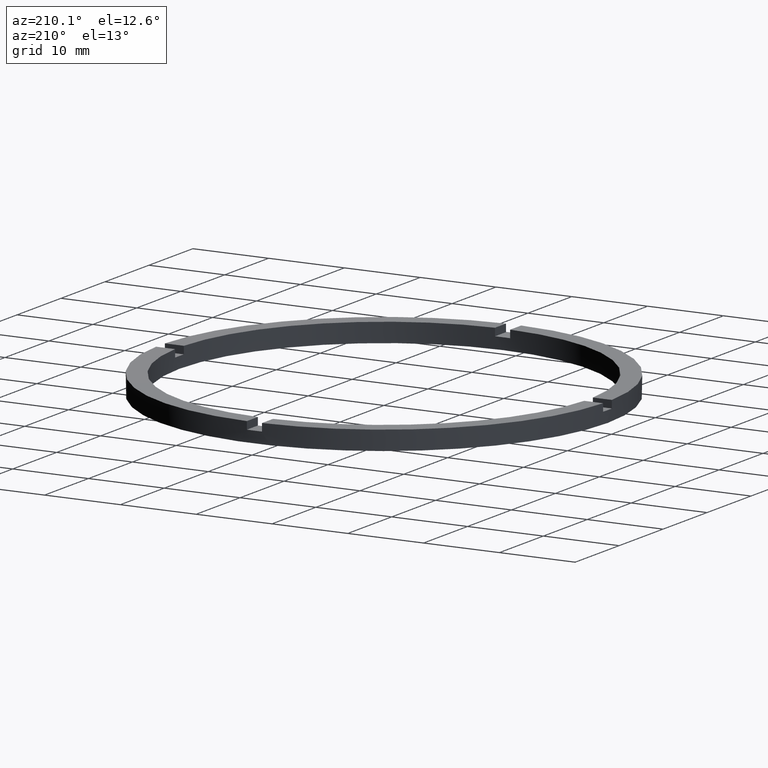
[diagram: clean part render]
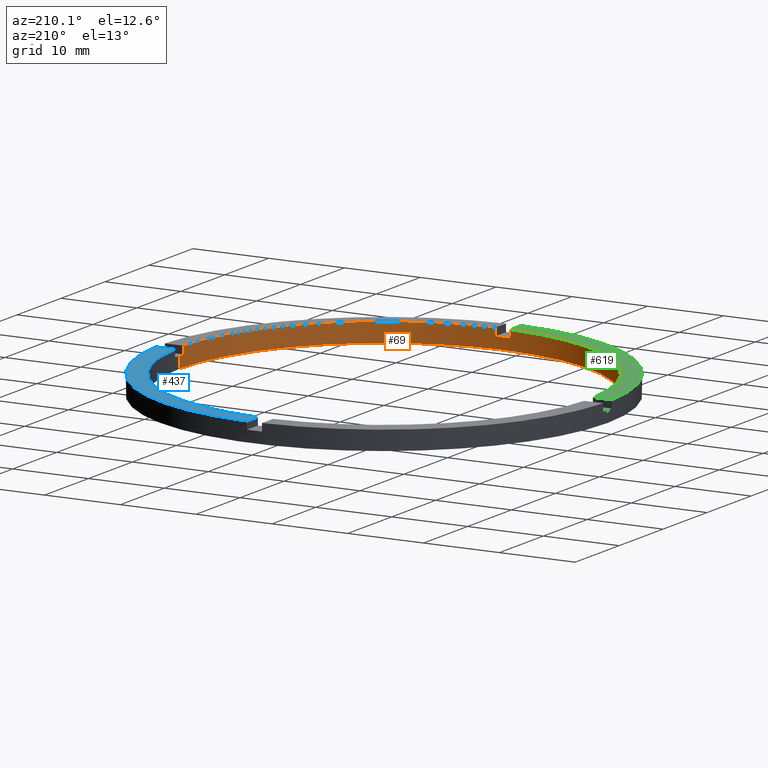
[diagram: same view with three faces highlighted in distinct colors, each labeled with its STEP entity id]
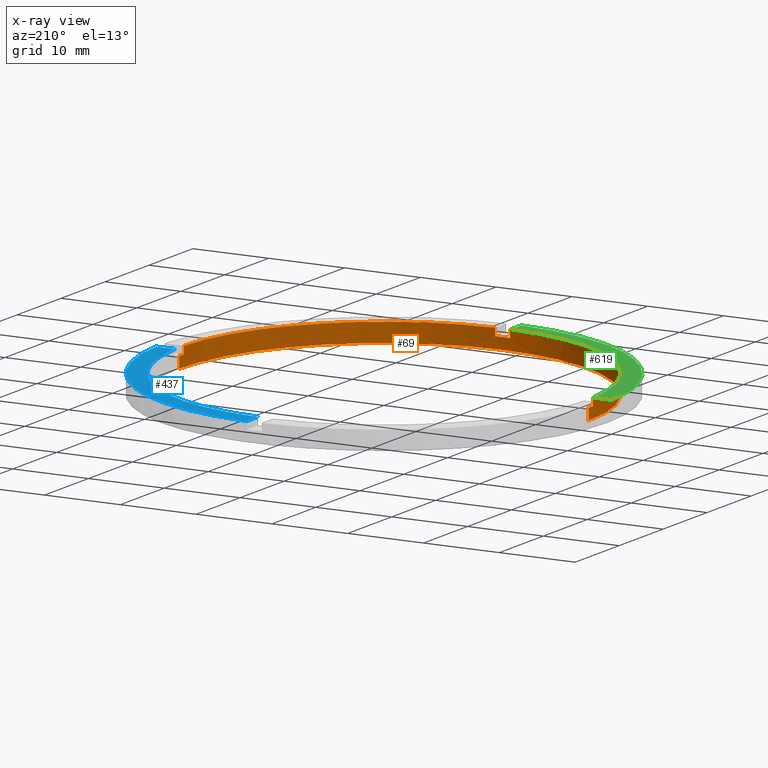
[diagram: x-ray of the same camera — body ghosted, the three highlighted faces saturated]
A machine part, auxiliary view with three faces highlighted in distinct colors.
The next image is the same camera in x-ray (body ghosted, the three faces saturated) — at least one of them is partly hidden behind the body in this view.
Their STEP definitions:

[orange] entity #69 — the highlighted cylindrical surface (partial cylindrical patch) has radius 27 mm, axis along (-0, -0, -1).
#1 = LINE ( 'NONE', #587, #252 ) ;
#3 = CIRCLE ( 'NONE', #139, 27.00000000000000000 ) ;
#13 = EDGE_CURVE ( 'NONE', #750, #728, #457, .T. ) ;
#14 = EDGE_CURVE ( 'NONE', #164, #415, #193, .T. ) ;
#18 = EDGE_CURVE ( 'NONE', #236, #504, #195, .T. ) ;
#39 = LINE ( 'NONE', #596, #40 ) ;
#40 = VECTOR ( 'NONE', #353, 1000.000000000000000 ) ;
#42 = FACE_OUTER_BOUND ( 'NONE', #422, .T. ) ;
#46 = DIRECTION ( 'NONE',  ( -0.000000000000000000, -0.000000000000000000, -1.000000000000000000 ) ) ;
#49 = LINE ( 'NONE', #76, #323 ) ;
#54 = DIRECTION ( 'NONE',  ( -0.000000000000000000, -0.000000000000000000, -1.000000000000000000 ) ) ;
#61 = CARTESIAN_POINT ( 'NONE',  ( 0.000000000000000000, 0.000000000000000000, 1.500000000000000000 ) ) ;
#69 = ADVANCED_FACE ( 'NONE', ( #42 ), #557, .F. ) ;
#70 = CARTESIAN_POINT ( 'NONE',  ( 27.00000000000000000, 3.306546357697853733E-15, 0.000000000000000000 ) ) ;
#73 = CARTESIAN_POINT ( 'NONE',  ( 0.000000000000000000, 0.000000000000000000, 1.500000000000000000 ) ) ;
#76 = CARTESIAN_POINT ( 'NONE',  ( -27.00000000000000000, 0.000000000000000000, 2.500000000000000000 ) ) ;
#104 = AXIS2_PLACEMENT_3D ( 'NONE', #502, #574, #364 ) ;
#116 = DIRECTION ( 'NONE',  ( -0.000000000000000000, 0.000000000000000000, 1.000000000000000000 ) ) ;
#139 = AXIS2_PLACEMENT_3D ( 'NONE', #61, #318, #466 ) ;
#141 = DIRECTION ( 'NONE',  ( 0.000000000000000000, 0.000000000000000000, 1.000000000000000000 ) ) ;
#148 = EDGE_CURVE ( 'NONE', #750, #504, #566, .T. ) ;
#154 = ORIENTED_EDGE ( 'NONE', *, *, #600, .F. ) ;
#159 = ORIENTED_EDGE ( 'NONE', *, *, #148, .F. ) ;
#164 = VERTEX_POINT ( 'NONE', #594 ) ;
#173 = EDGE_CURVE ( 'NONE', #780, #215, #49, .T. ) ;
#174 = ORIENTED_EDGE ( 'NONE', *, *, #597, .F. ) ;
#193 = CIRCLE ( 'NONE', #762, 27.00000000000000000 ) ;
#195 = CIRCLE ( 'NONE', #212, 27.00000000000000000 ) ;
#209 = DIRECTION ( 'NONE',  ( 0.000000000000000000, 0.000000000000000000, 1.000000000000000000 ) ) ;
#212 = AXIS2_PLACEMENT_3D ( 'NONE', #335, #375, #663 ) ;
#215 = VERTEX_POINT ( 'NONE', #515 ) ;
#221 = CARTESIAN_POINT ( 'NONE',  ( 27.00000000000000000, 3.306546357697853733E-15, 1.500000000000000000 ) ) ;
#224 = DIRECTION ( 'NONE',  ( 1.000000000000000000, 0.000000000000000000, 0.000000000000000000 ) ) ;
#231 = ORIENTED_EDGE ( 'NONE', *, *, #461, .F. ) ;
#233 = CIRCLE ( 'NONE', #341, 27.00000000000000000 ) ;
#235 = CARTESIAN_POINT ( 'NONE',  ( -27.00000000000000000, 0.000000000000000000, 1.500000000000000000 ) ) ;
#236 = VERTEX_POINT ( 'NONE', #660 ) ;
#239 = CARTESIAN_POINT ( 'NONE',  ( 0.000000000000000000, 0.000000000000000000, 2.500000000000000000 ) ) ;
#245 = AXIS2_PLACEMENT_3D ( 'NONE', #618, #209, #387 ) ;
#252 = VECTOR ( 'NONE', #540, 1000.000000000000000 ) ;
#269 = CARTESIAN_POINT ( 'NONE',  ( 0.000000000000000000, 0.000000000000000000, 1.500000000000000000 ) ) ;
#270 = LINE ( 'NONE', #455, #272 ) ;
#272 = VECTOR ( 'NONE', #46, 1000.000000000000000 ) ;
#277 = DIRECTION ( 'NONE',  ( 1.000000000000000000, 0.000000000000000000, 0.000000000000000000 ) ) ;
#283 = DIRECTION ( 'NONE',  ( 0.000000000000000000, 0.000000000000000000, 1.000000000000000000 ) ) ;
#297 = CARTESIAN_POINT ( 'NONE',  ( -1.000000000000162315, -26.98147512646407620, 2.500000000000000000 ) ) ;
#302 = CARTESIAN_POINT ( 'NONE',  ( 26.98147512646407620, -1.000000000000159206, 1.500000000000000000 ) ) ;
#316 = VECTOR ( 'NONE', #141, 1000.000000000000000 ) ;
#318 = DIRECTION ( 'NONE',  ( 0.000000000000000000, 0.000000000000000000, 1.000000000000000000 ) ) ;
#323 = VECTOR ( 'NONE', #54, 1000.000000000000000 ) ;
#335 = CARTESIAN_POINT ( 'NONE',  ( 0.000000000000000000, 0.000000000000000000, 2.500000000000000000 ) ) ;
#341 = AXIS2_PLACEMENT_3D ( 'NONE', #239, #639, #224 ) ;
#353 = DIRECTION ( 'NONE',  ( -0.000000000000000000, -0.000000000000000000, -1.000000000000000000 ) ) ;
#364 = DIRECTION ( 'NONE',  ( -1.000000000000000000, 0.000000000000000000, 0.000000000000000000 ) ) ;
#372 = CARTESIAN_POINT ( 'NONE',  ( 0.9999999999998377964, -26.98147512646408686, 1.500000000000000000 ) ) ;
#375 = DIRECTION ( 'NONE',  ( 0.000000000000000000, 0.000000000000000000, 1.000000000000000000 ) ) ;
#387 = DIRECTION ( 'NONE',  ( 1.000000000000000000, 0.000000000000000000, 0.000000000000000000 ) ) ;
#409 = VERTEX_POINT ( 'NONE', #70 ) ;
#415 = VERTEX_POINT ( 'NONE', #372 ) ;
#419 = VERTEX_POINT ( 'NONE', #576 ) ;
#420 = ORIENTED_EDGE ( 'NONE', *, *, #521, .T. ) ;
#422 = EDGE_LOOP ( 'NONE', ( #497, #776, #154, #494, #713, #516, #420, #174, #440, #231, #672, #159 ) ) ;
#440 = ORIENTED_EDGE ( 'NONE', *, *, #14, .T. ) ;
#451 = DIRECTION ( 'NONE',  ( -0.000000000000000000, -0.000000000000000000, -1.000000000000000000 ) ) ;
#455 = CARTESIAN_POINT ( 'NONE',  ( -26.98147512646407975, -1.000000000000024425, 2.500000000000000000 ) ) ;
#457 = CIRCLE ( 'NONE', #553, 27.00000000000000000 ) ;
#461 = EDGE_CURVE ( 'NONE', #236, #415, #39, .T. ) ;
#466 = DIRECTION ( 'NONE',  ( 1.000000000000000000, 0.000000000000000000, 0.000000000000000000 ) ) ;
#487 = VERTEX_POINT ( 'NONE', #549 ) ;
#494 = ORIENTED_EDGE ( 'NONE', *, *, #173, .F. ) ;
#497 = ORIENTED_EDGE ( 'NONE', *, *, #13, .T. ) ;
#499 = LINE ( 'NONE', #636, #766 ) ;
#501 = CIRCLE ( 'NONE', #245, 27.00000000000000000 ) ;
#502 = CARTESIAN_POINT ( 'NONE',  ( 0.000000000000000000, 0.000000000000000000, 2.500000000000000000 ) ) ;
#504 = VERTEX_POINT ( 'NONE', #714 ) ;
#510 = DIRECTION ( 'NONE',  ( 1.000000000000000000, 0.000000000000000000, 0.000000000000000000 ) ) ;
#515 = CARTESIAN_POINT ( 'NONE',  ( -27.00000000000000000, 0.000000000000000000, 0.000000000000000000 ) ) ;
#516 = ORIENTED_EDGE ( 'NONE', *, *, #655, .F. ) ;
#521 = EDGE_CURVE ( 'NONE', #487, #737, #233, .T. ) ;
#540 = DIRECTION ( 'NONE',  ( 0.000000000000000000, 0.000000000000000000, 1.000000000000000000 ) ) ;
#549 = CARTESIAN_POINT ( 'NONE',  ( -26.98147512646407975, -1.000000000000024425, 2.500000000000000000 ) ) ;
#553 = AXIS2_PLACEMENT_3D ( 'NONE', #269, #283, #277 ) ;
#557 = CYLINDRICAL_SURFACE ( 'NONE', #104, 27.00000000000000000 ) ;
#566 = LINE ( 'NONE', #781, #316 ) ;
#574 = DIRECTION ( 'NONE',  ( -0.000000000000000000, -0.000000000000000000, -1.000000000000000000 ) ) ;
#576 = CARTESIAN_POINT ( 'NONE',  ( -26.98147512646407975, -1.000000000000024425, 1.500000000000000000 ) ) ;
#584 = EDGE_CURVE ( 'NONE', #728, #409, #499, .T. ) ;
#587 = CARTESIAN_POINT ( 'NONE',  ( -1.000000000000162315, -26.98147512646407620, 2.500000000000000000 ) ) ;
#594 = CARTESIAN_POINT ( 'NONE',  ( -1.000000000000162315, -26.98147512646407620, 1.500000000000000000 ) ) ;
#596 = CARTESIAN_POINT ( 'NONE',  ( 0.9999999999998377964, -26.98147512646408686, 2.500000000000000000 ) ) ;
#597 = EDGE_CURVE ( 'NONE', #164, #737, #1, .T. ) ;
#600 = EDGE_CURVE ( 'NONE', #215, #409, #501, .T. ) ;
#618 = CARTESIAN_POINT ( 'NONE',  ( 0.000000000000000000, 0.000000000000000000, 0.000000000000000000 ) ) ;
#636 = CARTESIAN_POINT ( 'NONE',  ( 27.00000000000000000, 3.306546357697853733E-15, 2.500000000000000000 ) ) ;
#639 = DIRECTION ( 'NONE',  ( 0.000000000000000000, 0.000000000000000000, 1.000000000000000000 ) ) ;
#655 = EDGE_CURVE ( 'NONE', #487, #419, #270, .T. ) ;
#660 = CARTESIAN_POINT ( 'NONE',  ( 0.9999999999998377964, -26.98147512646408686, 2.500000000000000000 ) ) ;
#663 = DIRECTION ( 'NONE',  ( 1.000000000000000000, 0.000000000000000000, 0.000000000000000000 ) ) ;
#672 = ORIENTED_EDGE ( 'NONE', *, *, #18, .T. ) ;
#713 = ORIENTED_EDGE ( 'NONE', *, *, #723, .T. ) ;
#714 = CARTESIAN_POINT ( 'NONE',  ( 26.98147512646407620, -1.000000000000159206, 2.500000000000000000 ) ) ;
#723 = EDGE_CURVE ( 'NONE', #780, #419, #3, .T. ) ;
#728 = VERTEX_POINT ( 'NONE', #221 ) ;
#737 = VERTEX_POINT ( 'NONE', #297 ) ;
#750 = VERTEX_POINT ( 'NONE', #302 ) ;
#762 = AXIS2_PLACEMENT_3D ( 'NONE', #73, #116, #510 ) ;
#766 = VECTOR ( 'NONE', #451, 1000.000000000000000 ) ;
#776 = ORIENTED_EDGE ( 'NONE', *, *, #584, .T. ) ;
#780 = VERTEX_POINT ( 'NONE', #235 ) ;
#781 = CARTESIAN_POINT ( 'NONE',  ( 26.98147512646407620, -1.000000000000159206, 2.500000000000000000 ) ) ;

[blue] entity #437 — the highlighted planar face has unit normal (0, 0, 1).
#6 = VECTOR ( 'NONE', #585, 1000.000000000000000 ) ;
#34 = VECTOR ( 'NONE', #652, 1000.000000000000000 ) ;
#50 = DIRECTION ( 'NONE',  ( 1.000000000000000000, 0.000000000000000000, 0.000000000000000000 ) ) ;
#86 = AXIS2_PLACEMENT_3D ( 'NONE', #629, #771, #50 ) ;
#101 = CARTESIAN_POINT ( 'NONE',  ( 0.9999999999999756861, 29.48304597561114093, 2.500000000000000000 ) ) ;
#108 = PLANE ( 'NONE',  #744 ) ;
#113 = EDGE_CURVE ( 'NONE', #407, #691, #564, .T. ) ;
#117 = DIRECTION ( 'NONE',  ( 0.000000000000000000, 0.000000000000000000, 1.000000000000000000 ) ) ;
#122 = DIRECTION ( 'NONE',  ( 1.000000000000000000, 0.000000000000000000, -0.000000000000000000 ) ) ;
#142 = ORIENTED_EDGE ( 'NONE', *, *, #608, .F. ) ;
#172 = CARTESIAN_POINT ( 'NONE',  ( 0.000000000000000000, 0.000000000000000000, 2.500000000000000000 ) ) ;
#183 = ORIENTED_EDGE ( 'NONE', *, *, #113, .F. ) ;
#185 = EDGE_LOOP ( 'NONE', ( #142, #448, #183, #435 ) ) ;
#238 = CARTESIAN_POINT ( 'NONE',  ( 19.50000000000000000, 0.9999999999998404610, 2.500000000000000000 ) ) ;
#258 = DIRECTION ( 'NONE',  ( 0.000000000000000000, 0.000000000000000000, 1.000000000000000000 ) ) ;
#285 = DIRECTION ( 'NONE',  ( 1.000000000000000000, 0.000000000000000000, 0.000000000000000000 ) ) ;
#312 = CARTESIAN_POINT ( 'NONE',  ( 0.9999999999999756861, 26.98147512646408330, 2.500000000000000000 ) ) ;
#365 = CIRCLE ( 'NONE', #382, 27.00000000000000000 ) ;
#367 = EDGE_CURVE ( 'NONE', #691, #746, #365, .T. ) ;
#382 = AXIS2_PLACEMENT_3D ( 'NONE', #674, #117, #285 ) ;
#390 = CARTESIAN_POINT ( 'NONE',  ( 0.9999999999999756861, 19.50000000000000355, 2.500000000000000000 ) ) ;
#393 = CARTESIAN_POINT ( 'NONE',  ( 26.98147512646408686, 0.9999999999998409050, 2.500000000000000000 ) ) ;
#407 = VERTEX_POINT ( 'NONE', #475 ) ;
#435 = ORIENTED_EDGE ( 'NONE', *, *, #601, .T. ) ;
#437 = ADVANCED_FACE ( 'NONE', ( #570 ), #108, .T. ) ;
#448 = ORIENTED_EDGE ( 'NONE', *, *, #367, .F. ) ;
#475 = CARTESIAN_POINT ( 'NONE',  ( 29.48304597561114448, 0.9999999999998411271, 2.500000000000000000 ) ) ;
#527 = CIRCLE ( 'NONE', #86, 29.50000000000000355 ) ;
#532 = LINE ( 'NONE', #390, #6 ) ;
#564 = LINE ( 'NONE', #238, #34 ) ;
#570 = FACE_OUTER_BOUND ( 'NONE', #185, .T. ) ;
#585 = DIRECTION ( 'NONE',  ( 0.000000000000000000, 1.000000000000000000, 0.000000000000000000 ) ) ;
#601 = EDGE_CURVE ( 'NONE', #407, #684, #527, .T. ) ;
#608 = EDGE_CURVE ( 'NONE', #746, #684, #532, .T. ) ;
#629 = CARTESIAN_POINT ( 'NONE',  ( 0.000000000000000000, 0.000000000000000000, 2.500000000000000000 ) ) ;
#652 = DIRECTION ( 'NONE',  ( -1.000000000000000000, -6.505213034913027837E-17, -0.000000000000000000 ) ) ;
#674 = CARTESIAN_POINT ( 'NONE',  ( 0.000000000000000000, 0.000000000000000000, 2.500000000000000000 ) ) ;
#684 = VERTEX_POINT ( 'NONE', #101 ) ;
#691 = VERTEX_POINT ( 'NONE', #393 ) ;
#744 = AXIS2_PLACEMENT_3D ( 'NONE', #172, #258, #122 ) ;
#746 = VERTEX_POINT ( 'NONE', #312 ) ;
#771 = DIRECTION ( 'NONE',  ( 0.000000000000000000, 0.000000000000000000, 1.000000000000000000 ) ) ;

[green] entity #619 — the highlighted planar face has unit normal (0, 0, 1).
#33 = AXIS2_PLACEMENT_3D ( 'NONE', #343, #588, #630 ) ;
#98 = AXIS2_PLACEMENT_3D ( 'NONE', #150, #182, #330 ) ;
#99 = EDGE_CURVE ( 'NONE', #421, #491, #307, .T. ) ;
#150 = CARTESIAN_POINT ( 'NONE',  ( 0.000000000000000000, 0.000000000000000000, 2.500000000000000000 ) ) ;
#157 = EDGE_LOOP ( 'NONE', ( #726, #443, #700, #758 ) ) ;
#182 = DIRECTION ( 'NONE',  ( 0.000000000000000000, 0.000000000000000000, 1.000000000000000000 ) ) ;
#208 = LINE ( 'NONE', #648, #468 ) ;
#224 = DIRECTION ( 'NONE',  ( 1.000000000000000000, 0.000000000000000000, 0.000000000000000000 ) ) ;
#233 = CIRCLE ( 'NONE', #341, 27.00000000000000000 ) ;
#239 = CARTESIAN_POINT ( 'NONE',  ( 0.000000000000000000, 0.000000000000000000, 2.500000000000000000 ) ) ;
#260 = FACE_OUTER_BOUND ( 'NONE', #157, .T. ) ;
#297 = CARTESIAN_POINT ( 'NONE',  ( -1.000000000000162315, -26.98147512646407620, 2.500000000000000000 ) ) ;
#307 = CIRCLE ( 'NONE', #98, 29.50000000000000355 ) ;
#330 = DIRECTION ( 'NONE',  ( 1.000000000000000000, 0.000000000000000000, 0.000000000000000000 ) ) ;
#341 = AXIS2_PLACEMENT_3D ( 'NONE', #239, #639, #224 ) ;
#343 = CARTESIAN_POINT ( 'NONE',  ( 0.000000000000000000, 0.000000000000000000, 2.500000000000000000 ) ) ;
#369 = VECTOR ( 'NONE', #399, 1000.000000000000000 ) ;
#396 = EDGE_CURVE ( 'NONE', #737, #491, #208, .T. ) ;
#399 = DIRECTION ( 'NONE',  ( 1.000000000000000000, 1.951563910473908228E-16, -0.000000000000000000 ) ) ;
#410 = DIRECTION ( 'NONE',  ( 1.301042606982605567E-16, -1.000000000000000000, 0.000000000000000000 ) ) ;
#421 = VERTEX_POINT ( 'NONE', #611 ) ;
#443 = ORIENTED_EDGE ( 'NONE', *, *, #521, .F. ) ;
#468 = VECTOR ( 'NONE', #410, 1000.000000000000000 ) ;
#487 = VERTEX_POINT ( 'NONE', #549 ) ;
#491 = VERTEX_POINT ( 'NONE', #643 ) ;
#521 = EDGE_CURVE ( 'NONE', #487, #737, #233, .T. ) ;
#526 = EDGE_CURVE ( 'NONE', #421, #487, #760, .T. ) ;
#536 = PLANE ( 'NONE',  #33 ) ;
#549 = CARTESIAN_POINT ( 'NONE',  ( -26.98147512646407975, -1.000000000000024425, 2.500000000000000000 ) ) ;
#588 = DIRECTION ( 'NONE',  ( 0.000000000000000000, 0.000000000000000000, 1.000000000000000000 ) ) ;
#592 = CARTESIAN_POINT ( 'NONE',  ( -19.50000000000018829, -1.000000000000023315, 2.500000000000000000 ) ) ;
#611 = CARTESIAN_POINT ( 'NONE',  ( -29.48304597561113738, -1.000000000000025091, 2.500000000000000000 ) ) ;
#619 = ADVANCED_FACE ( 'NONE', ( #260 ), #536, .T. ) ;
#630 = DIRECTION ( 'NONE',  ( 1.000000000000000000, 0.000000000000000000, -0.000000000000000000 ) ) ;
#639 = DIRECTION ( 'NONE',  ( 0.000000000000000000, 0.000000000000000000, 1.000000000000000000 ) ) ;
#643 = CARTESIAN_POINT ( 'NONE',  ( -1.000000000000161871, -29.48304597561113383, 2.500000000000000000 ) ) ;
#648 = CARTESIAN_POINT ( 'NONE',  ( -1.000000000000162981, -19.50000000000018474, 2.500000000000000000 ) ) ;
#700 = ORIENTED_EDGE ( 'NONE', *, *, #526, .F. ) ;
#726 = ORIENTED_EDGE ( 'NONE', *, *, #396, .F. ) ;
#737 = VERTEX_POINT ( 'NONE', #297 ) ;
#758 = ORIENTED_EDGE ( 'NONE', *, *, #99, .T. ) ;
#760 = LINE ( 'NONE', #592, #369 ) ;